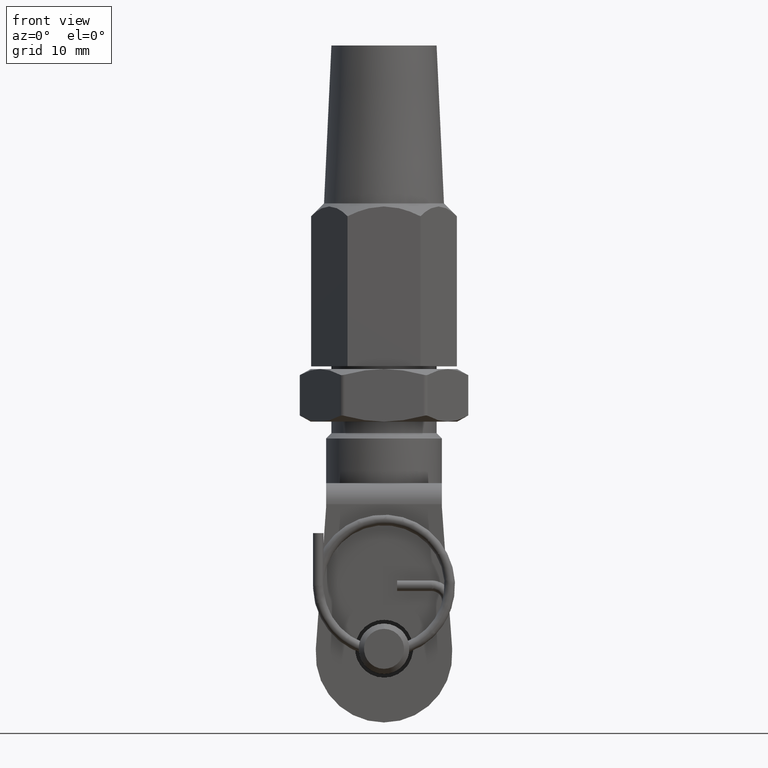
[diagram: clean part render]
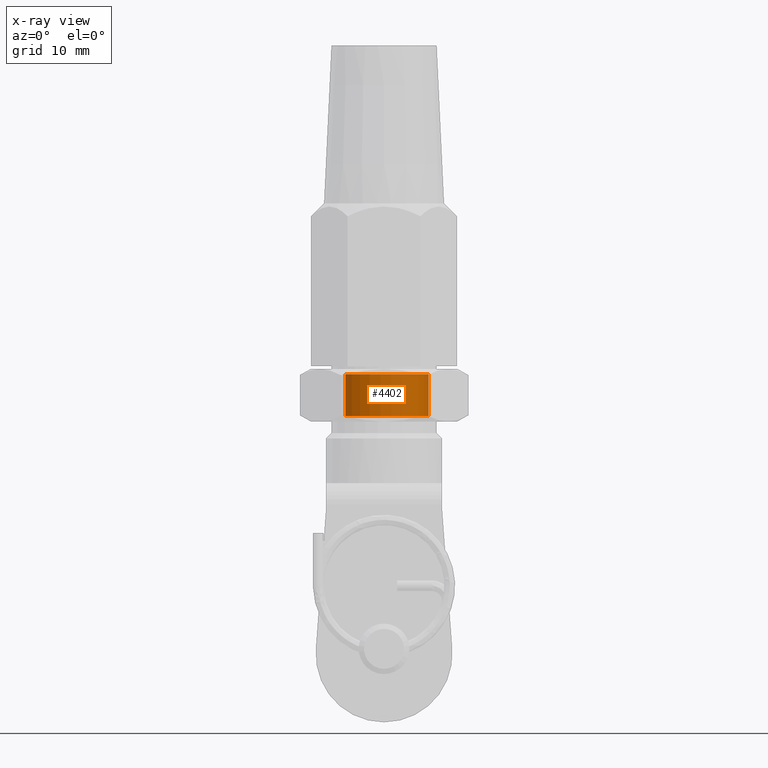
[diagram: x-ray — body ghosted, one internal face saturated and labeled with its STEP entity id]
A machine part, front view, then the same camera in x-ray: the body is ghosted and one INTERNAL B-rep face — a face not visible from any outside direction — is saturated and labeled: STEP entity #4402.
In plain terms, the highlighted cylindrical surface (partial cylindrical patch) has radius 4.25 mm, axis along (0, 0, -1).
Its self-contained STEP definition (entity closure, byte-faithful):
#76 = VERTEX_POINT ( 'NONE', #14929 ) ;
#1006 = DIRECTION ( 'NONE',  ( -0.0000000000000000000, -1.000000000000000000, -0.0000000000000000000 ) ) ;
#2042 = AXIS2_PLACEMENT_3D ( 'NONE', #2805, #17456, #6930 ) ;
#2245 = EDGE_CURVE ( 'NONE', #3547, #76, #14404, .T. ) ;
#2805 = CARTESIAN_POINT ( 'NONE',  ( 0.0000000000000000000, 1.999999999999991800, 0.0000000000000000000 ) ) ;
#3547 = VERTEX_POINT ( 'NONE', #21373 ) ;
#4143 = EDGE_CURVE ( 'NONE', #11700, #3547, #17229, .T. ) ;
#4402 = ADVANCED_FACE ( 'NONE', ( #4411 ), #4985, .F. ) ;
#4411 = FACE_OUTER_BOUND ( 'NONE', #6314, .T. ) ;
#4532 = ORIENTED_EDGE ( 'NONE', *, *, #4143, .T. ) ;
#4934 = ORIENTED_EDGE ( 'NONE', *, *, #7292, .F. ) ;
#4968 = DIRECTION ( 'NONE',  ( -0.0000000000000000000, 1.000000000000000000, -0.0000000000000000000 ) ) ;
#4985 = CYLINDRICAL_SURFACE ( 'NONE', #18879, 4.249999999999998200 ) ;
#6314 = EDGE_LOOP ( 'NONE', ( #4532, #11145, #15416, #4934 ) ) ;
#6865 = CARTESIAN_POINT ( 'NONE',  ( 5.204748896376249700E-016, 2.500000000000000000, -4.249999999999998200 ) ) ;
#6930 = DIRECTION ( 'NONE',  ( 0.0000000000000000000, 0.0000000000000000000, 1.000000000000000000 ) ) ;
#7292 = EDGE_CURVE ( 'NONE', #11700, #23110, #16885, .T. ) ;
#8229 = CARTESIAN_POINT ( 'NONE',  ( 0.0000000000000000000, 2.500000000000000000, 0.0000000000000000000 ) ) ;
#8372 = VECTOR ( 'NONE', #12608, 1000.000000000000000 ) ;
#11145 = ORIENTED_EDGE ( 'NONE', *, *, #2245, .T. ) ;
#11700 = VERTEX_POINT ( 'NONE', #18039 ) ;
#12608 = DIRECTION ( 'NONE',  ( -0.0000000000000000000, 1.000000000000000000, -0.0000000000000000000 ) ) ;
#14404 = LINE ( 'NONE', #6865, #18974 ) ;
#14929 = CARTESIAN_POINT ( 'NONE',  ( 5.204748896376249700E-016, 1.999999999999991800, -4.249999999999998200 ) ) ;
#15416 = ORIENTED_EDGE ( 'NONE', *, *, #18011, .T. ) ;
#15703 = CARTESIAN_POINT ( 'NONE',  ( 0.0000000000000000000, -1.999999999999995300, 0.0000000000000000000 ) ) ;
#16363 = CIRCLE ( 'NONE', #2042, 4.249999999999998200 ) ;
#16885 = LINE ( 'NONE', #19784, #8372 ) ;
#17229 = CIRCLE ( 'NONE', #18246, 4.249999999999998200 ) ;
#17456 = DIRECTION ( 'NONE',  ( 0.0000000000000000000, 1.000000000000000000, 0.0000000000000000000 ) ) ;
#17696 = DIRECTION ( 'NONE',  ( 0.0000000000000000000, 0.0000000000000000000, 1.000000000000000000 ) ) ;
#18011 = EDGE_CURVE ( 'NONE', #76, #23110, #16363, .T. ) ;
#18039 = CARTESIAN_POINT ( 'NONE',  ( 0.0000000000000000000, -1.999999999999995300, 4.249999999999998200 ) ) ;
#18246 = AXIS2_PLACEMENT_3D ( 'NONE', #15703, #1006, #21122 ) ;
#18879 = AXIS2_PLACEMENT_3D ( 'NONE', #8229, #4968, #17696 ) ;
#18974 = VECTOR ( 'NONE', #21125, 1000.000000000000000 ) ;
#19784 = CARTESIAN_POINT ( 'NONE',  ( 0.0000000000000000000, 2.500000000000000000, 4.249999999999998200 ) ) ;
#20438 = CARTESIAN_POINT ( 'NONE',  ( 0.0000000000000000000, 1.999999999999991800, 4.249999999999998200 ) ) ;
#21122 = DIRECTION ( 'NONE',  ( 0.0000000000000000000, 0.0000000000000000000, 1.000000000000000000 ) ) ;
#21125 = DIRECTION ( 'NONE',  ( -0.0000000000000000000, 1.000000000000000000, -0.0000000000000000000 ) ) ;
#21373 = CARTESIAN_POINT ( 'NONE',  ( 5.204748896376249700E-016, -1.999999999999995300, -4.249999999999998200 ) ) ;
#23110 = VERTEX_POINT ( 'NONE', #20438 ) ;